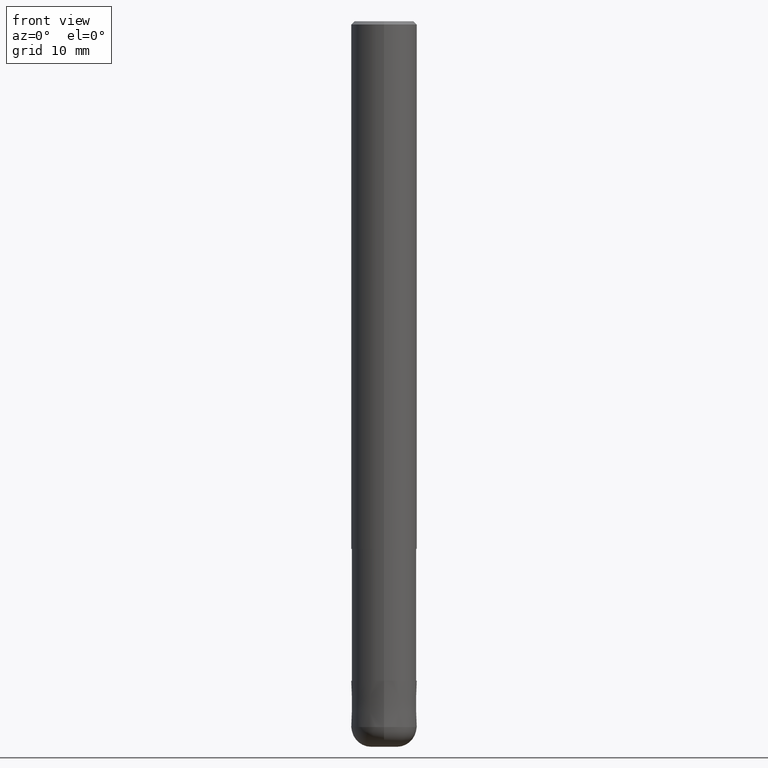
[diagram: clean part render]
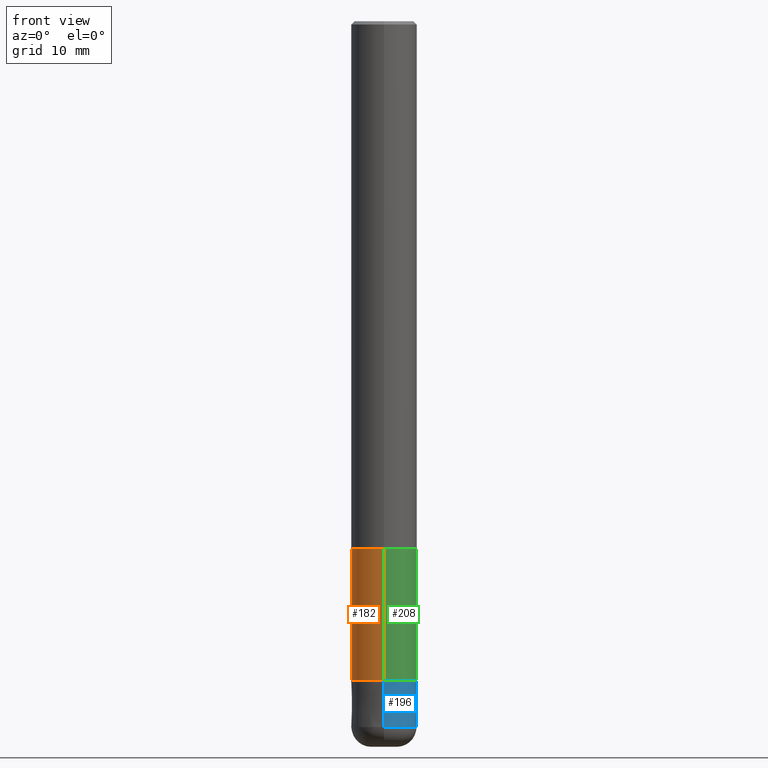
[diagram: same view with three faces highlighted in distinct colors, each labeled with its STEP entity id]
A machine part, front view with three faces highlighted in distinct colors.
Their STEP definitions:

[orange] entity #182 — the highlighted cylindrical surface (edge-blend (fillet) strip) has radius 4.91 mm, axis along (-0, -0, 1).
#104=VERTEX_POINT('',#242);
#128=EDGE_CURVE('',#104,#192,#268,.T.);
#138=EDGE_CURVE('',#104,#158,#280,.T.);
#154=EDGE_CURVE('',#156,#158,#297,.T.);
#156=VERTEX_POINT('',#299);
#158=VERTEX_POINT('',#301);
#168=EDGE_CURVE('',#192,#156,#312,.T.);
#182=ADVANCED_FACE('',(#331),#332,.T.);
#192=VERTEX_POINT('',#342);
#242=CARTESIAN_POINT('',(6.01275596695018E-016,-4.90995,-100.0));
#268=LINE('',#420,#421);
#280=CIRCLE('',#436,4.90995);
#297=LINE('',#459,#460);
#299=CARTESIAN_POINT('',(0.0,4.90995,-80.0));
#301=CARTESIAN_POINT('',(0.0,4.90995,-100.0));
#312=CIRCLE('',#478,4.90995);
#331=FACE_OUTER_BOUND('',#500,.T.);
#332=CYLINDRICAL_SURFACE('',#501,4.90995);
#342=CARTESIAN_POINT('',(6.01275596695018E-016,-4.90995,-80.0));
#420=CARTESIAN_POINT('',(6.01275596695018E-016,-4.90995,-90.0));
#421=VECTOR('',#575,1.0);
#436=AXIS2_PLACEMENT_3D('',#591,#592,#593);
#459=CARTESIAN_POINT('',(-6.01275596695018E-016,4.90995,-90.0));
#460=VECTOR('',#617,1.0);
#478=AXIS2_PLACEMENT_3D('',#630,#631,#632);
#500=EDGE_LOOP('',(#668,#669,#670,#671));
#501=AXIS2_PLACEMENT_3D('',#672,#673,#674);
#575=DIRECTION('',(-0.0,-0.0,1.0));
#591=CARTESIAN_POINT('',(0.0,0.0,-100.0));
#592=DIRECTION('',(0.0,0.0,-1.0));
#593=DIRECTION('',(0.0,1.0,0.0));
#617=DIRECTION('',(0.0,0.0,-1.0));
#630=CARTESIAN_POINT('',(0.0,0.0,-80.0));
#631=DIRECTION('',(0.0,0.0,-1.0));
#632=DIRECTION('',(0.0,1.0,0.0));
#668=ORIENTED_EDGE('',*,*,#154,.T.);
#669=ORIENTED_EDGE('',*,*,#138,.F.);
#670=ORIENTED_EDGE('',*,*,#128,.T.);
#671=ORIENTED_EDGE('',*,*,#168,.T.);
#672=CARTESIAN_POINT('',(0.0,0.0,-90.0));
#673=DIRECTION('',(-0.0,-0.0,1.0));
#674=DIRECTION('',(0.0,1.0,0.0));

[blue] entity #196 — the highlighted conical surface has half-angle 0.001 deg.
#106=VERTEX_POINT('',#244);
#116=VERTEX_POINT('',#255);
#120=VERTEX_POINT('',#259);
#152=VERTEX_POINT('',#295);
#164=EDGE_CURVE('',#116,#120,#308,.T.);
#174=EDGE_CURVE('',#120,#106,#320,.T.);
#186=EDGE_CURVE('',#152,#116,#336,.T.);
#196=ADVANCED_FACE('',(#346),#347,.T.);
#198=EDGE_CURVE('',#152,#106,#349,.T.);
#244=CARTESIAN_POINT('',(6.1229093084765E-016,-4.9999,-100.0));
#255=CARTESIAN_POINT('',(0.0,5.0,-107.0));
#259=CARTESIAN_POINT('',(6.12303176911189E-016,-5.0,-107.0));
#295=CARTESIAN_POINT('',(0.0,4.9999,-100.0));
#308=CIRCLE('',#472,5.0);
#320=LINE('',#487,#488);
#336=LINE('',#507,#508);
#346=FACE_OUTER_BOUND('',#520,.T.);
#347=CONICAL_SURFACE('',#521,4.99995,1.42857142847092E-005);
#349=CIRCLE('',#524,4.9999);
#472=AXIS2_PLACEMENT_3D('',#624,#625,#626);
#487=CARTESIAN_POINT('',(6.12297053879419E-016,-4.99995,-103.5));
#488=VECTOR('',#647,1.0);
#507=CARTESIAN_POINT('',(-6.1229705387942E-016,4.99995,-103.5));
#508=VECTOR('',#678,1.0);
#520=EDGE_LOOP('',(#686,#687,#688,#689));
#521=AXIS2_PLACEMENT_3D('',#690,#691,#692);
#524=AXIS2_PLACEMENT_3D('',#693,#694,#695);
#624=CARTESIAN_POINT('',(0.0,0.0,-107.0));
#625=DIRECTION('',(0.0,0.0,-1.0));
#626=DIRECTION('',(0.0,1.0,0.0));
#647=DIRECTION('',(-1.74943764813509E-021,1.42857142842233E-005,0.999999999897959));
#678=DIRECTION('',(-1.74943764813509E-021,1.42857142842233E-005,-0.999999999897959));
#686=ORIENTED_EDGE('',*,*,#186,.F.);
#687=ORIENTED_EDGE('',*,*,#198,.T.);
#688=ORIENTED_EDGE('',*,*,#174,.F.);
#689=ORIENTED_EDGE('',*,*,#164,.F.);
#690=CARTESIAN_POINT('',(0.0,0.0,-103.5));
#691=DIRECTION('',(0.0,-0.0,-1.0));
#692=DIRECTION('',(0.0,1.0,0.0));
#693=CARTESIAN_POINT('',(0.0,0.0,-100.0));
#694=DIRECTION('',(0.0,0.0,-1.0));
#695=DIRECTION('',(0.0,1.0,0.0));

[green] entity #208 — the highlighted cylindrical surface (edge-blend (fillet) strip) has radius 4.91 mm, axis along (-0, -0, 1).
#104=VERTEX_POINT('',#242);
#128=EDGE_CURVE('',#104,#192,#268,.T.);
#154=EDGE_CURVE('',#156,#158,#297,.T.);
#156=VERTEX_POINT('',#299);
#158=VERTEX_POINT('',#301);
#184=EDGE_CURVE('',#158,#104,#334,.T.);
#192=VERTEX_POINT('',#342);
#194=EDGE_CURVE('',#156,#192,#344,.T.);
#208=ADVANCED_FACE('',(#360),#361,.T.);
#242=CARTESIAN_POINT('',(6.01275596695018E-016,-4.90995,-100.0));
#268=LINE('',#420,#421);
#297=LINE('',#459,#460);
#299=CARTESIAN_POINT('',(0.0,4.90995,-80.0));
#301=CARTESIAN_POINT('',(0.0,4.90995,-100.0));
#334=CIRCLE('',#504,4.90995);
#342=CARTESIAN_POINT('',(6.01275596695018E-016,-4.90995,-80.0));
#344=CIRCLE('',#518,4.90995);
#360=FACE_OUTER_BOUND('',#537,.T.);
#361=CYLINDRICAL_SURFACE('',#538,4.90995);
#420=CARTESIAN_POINT('',(6.01275596695018E-016,-4.90995,-90.0));
#421=VECTOR('',#575,1.0);
#459=CARTESIAN_POINT('',(-6.01275596695018E-016,4.90995,-90.0));
#460=VECTOR('',#617,1.0);
#504=AXIS2_PLACEMENT_3D('',#675,#676,#677);
#518=AXIS2_PLACEMENT_3D('',#682,#683,#684);
#537=EDGE_LOOP('',(#709,#710,#711,#712));
#538=AXIS2_PLACEMENT_3D('',#713,#714,#715);
#575=DIRECTION('',(-0.0,-0.0,1.0));
#617=DIRECTION('',(0.0,0.0,-1.0));
#675=CARTESIAN_POINT('',(0.0,0.0,-100.0));
#676=DIRECTION('',(0.0,0.0,-1.0));
#677=DIRECTION('',(0.0,1.0,0.0));
#682=CARTESIAN_POINT('',(0.0,0.0,-80.0));
#683=DIRECTION('',(0.0,0.0,-1.0));
#684=DIRECTION('',(0.0,1.0,0.0));
#709=ORIENTED_EDGE('',*,*,#154,.F.);
#710=ORIENTED_EDGE('',*,*,#194,.T.);
#711=ORIENTED_EDGE('',*,*,#128,.F.);
#712=ORIENTED_EDGE('',*,*,#184,.F.);
#713=CARTESIAN_POINT('',(0.0,0.0,-90.0));
#714=DIRECTION('',(-0.0,-0.0,1.0));
#715=DIRECTION('',(0.0,1.0,0.0));